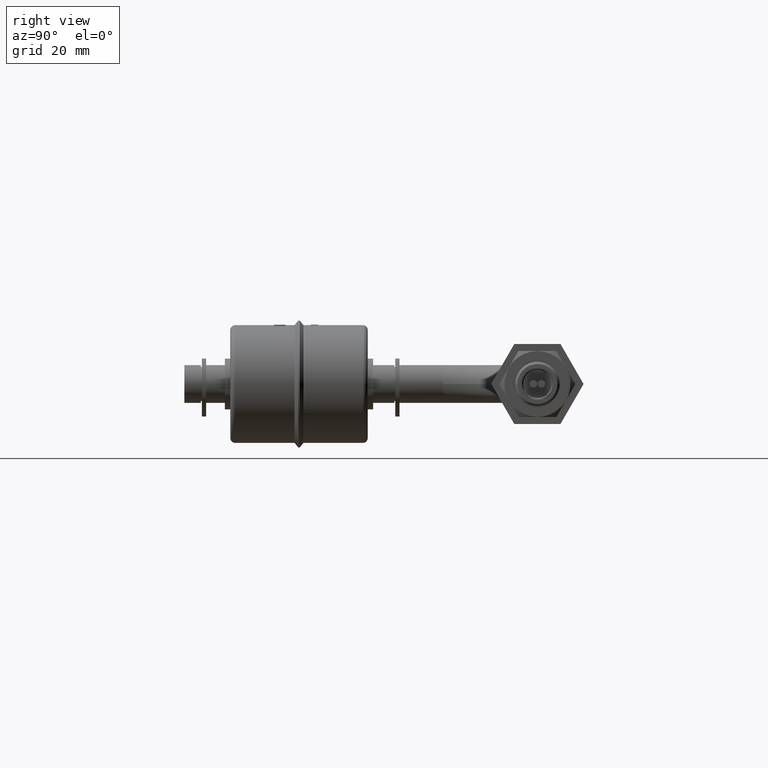
[diagram: clean part render]
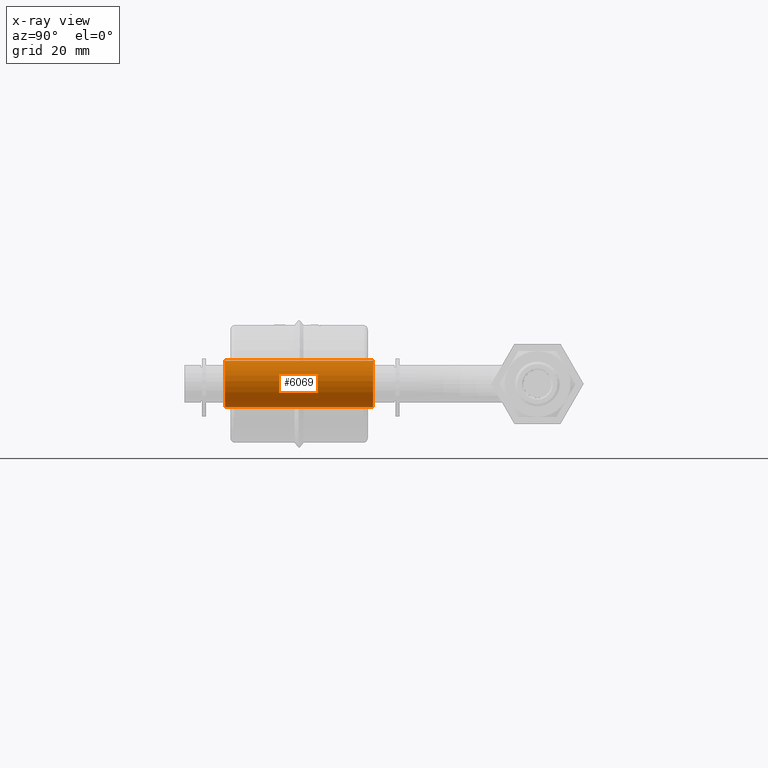
[diagram: x-ray — body ghosted, one internal face saturated and labeled with its STEP entity id]
A machine part, right view, then the same camera in x-ray: the body is ghosted and one INTERNAL B-rep face — a face not visible from any outside direction — is saturated and labeled: STEP entity #6069.
In plain terms, the highlighted cylindrical surface (edge-blend (fillet) strip) has radius 4.95 mm, axis along (-0, -1, -0).
Its self-contained STEP definition (entity closure, byte-faithful):
#95 = ORIENTED_EDGE ( 'NONE', *, *, #8133, .T. ) ;
#101 = DIRECTION ( 'NONE',  ( -0.0000000000000000000, -1.000000000000000000, -0.0000000000000000000 ) ) ;
#272 = CYLINDRICAL_SURFACE ( 'NONE', #5975, 4.949999999999999289 ) ;
#331 = ORIENTED_EDGE ( 'NONE', *, *, #8319, .F. ) ;
#823 = DIRECTION ( 'NONE',  ( 0.0000000000000000000, 0.0000000000000000000, -1.000000000000000000 ) ) ;
#1083 = ORIENTED_EDGE ( 'NONE', *, *, #5431, .T. ) ;
#1779 = CARTESIAN_POINT ( 'NONE',  ( 0.0000000000000000000, 40.09999999999999432, 0.0000000000000000000 ) ) ;
#1810 = ORIENTED_EDGE ( 'NONE', *, *, #4328, .F. ) ;
#2041 = DIRECTION ( 'NONE',  ( 0.0000000000000000000, 0.0000000000000000000, -1.000000000000000000 ) ) ;
#2755 = CARTESIAN_POINT ( 'NONE',  ( 6.062001655779397525E-16, 40.09999999999999432, 4.949999999999999289 ) ) ;
#2765 = LINE ( 'NONE', #5156, #10217 ) ;
#3343 = DIRECTION ( 'NONE',  ( -0.0000000000000000000, -1.000000000000000000, -0.0000000000000000000 ) ) ;
#3391 = FACE_OUTER_BOUND ( 'NONE', #3905, .T. ) ;
#3566 = DIRECTION ( 'NONE',  ( -0.0000000000000000000, -1.000000000000000000, -0.0000000000000000000 ) ) ;
#3905 = EDGE_LOOP ( 'NONE', ( #1083, #95, #331, #1810 ) ) ;
#3959 = CIRCLE ( 'NONE', #7666, 4.949999999999999289 ) ;
#4328 = EDGE_CURVE ( 'NONE', #6691, #9361, #5297, .T. ) ;
#4616 = CARTESIAN_POINT ( 'NONE',  ( 0.0000000000000000000, -15.79933653077540257, -4.949999999999999289 ) ) ;
#4934 = VERTEX_POINT ( 'NONE', #2755 ) ;
#5156 = CARTESIAN_POINT ( 'NONE',  ( 6.062001655779397525E-16, -15.79933653077540257, 4.949999999999999289 ) ) ;
#5297 = LINE ( 'NONE', #4616, #6638 ) ;
#5431 = EDGE_CURVE ( 'NONE', #6691, #4934, #3959, .T. ) ;
#5975 = AXIS2_PLACEMENT_3D ( 'NONE', #7360, #3343, #2041 ) ;
#6022 = CARTESIAN_POINT ( 'NONE',  ( 0.0000000000000000000, 8.599999999999999645, 0.0000000000000000000 ) ) ;
#6069 = ADVANCED_FACE ( 'NONE', ( #3391 ), #272, .T. ) ;
#6638 = VECTOR ( 'NONE', #9389, 1000.000000000000000 ) ;
#6691 = VERTEX_POINT ( 'NONE', #8561 ) ;
#7170 = CARTESIAN_POINT ( 'NONE',  ( 0.0000000000000000000, 8.599999999999999645, -4.949999999999999289 ) ) ;
#7360 = CARTESIAN_POINT ( 'NONE',  ( 0.0000000000000000000, -15.79933653077540257, 0.0000000000000000000 ) ) ;
#7517 = DIRECTION ( 'NONE',  ( -0.0000000000000000000, -1.000000000000000000, -0.0000000000000000000 ) ) ;
#7666 = AXIS2_PLACEMENT_3D ( 'NONE', #1779, #101, #823 ) ;
#7711 = AXIS2_PLACEMENT_3D ( 'NONE', #6022, #7517, #9239 ) ;
#7809 = VERTEX_POINT ( 'NONE', #9800 ) ;
#8133 = EDGE_CURVE ( 'NONE', #4934, #7809, #2765, .T. ) ;
#8319 = EDGE_CURVE ( 'NONE', #9361, #7809, #9206, .T. ) ;
#8561 = CARTESIAN_POINT ( 'NONE',  ( 0.0000000000000000000, 40.09999999999999432, -4.949999999999999289 ) ) ;
#9206 = CIRCLE ( 'NONE', #7711, 4.949999999999999289 ) ;
#9239 = DIRECTION ( 'NONE',  ( 0.0000000000000000000, 0.0000000000000000000, -1.000000000000000000 ) ) ;
#9361 = VERTEX_POINT ( 'NONE', #7170 ) ;
#9389 = DIRECTION ( 'NONE',  ( -0.0000000000000000000, -1.000000000000000000, -0.0000000000000000000 ) ) ;
#9800 = CARTESIAN_POINT ( 'NONE',  ( 6.062001655779397525E-16, 8.599999999999999645, 4.949999999999999289 ) ) ;
#10217 = VECTOR ( 'NONE', #3566, 1000.000000000000000 ) ;